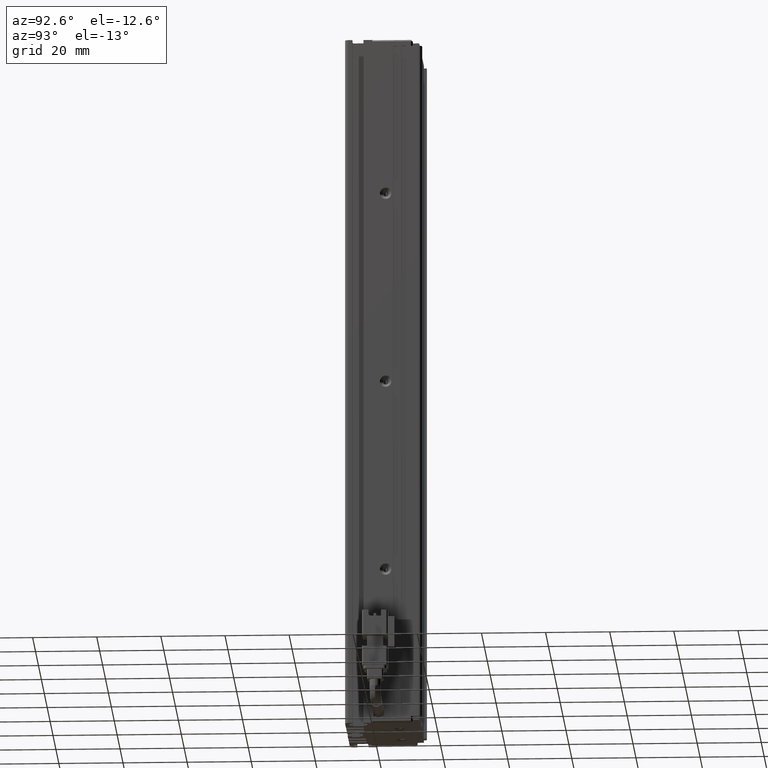
[diagram: clean part render]
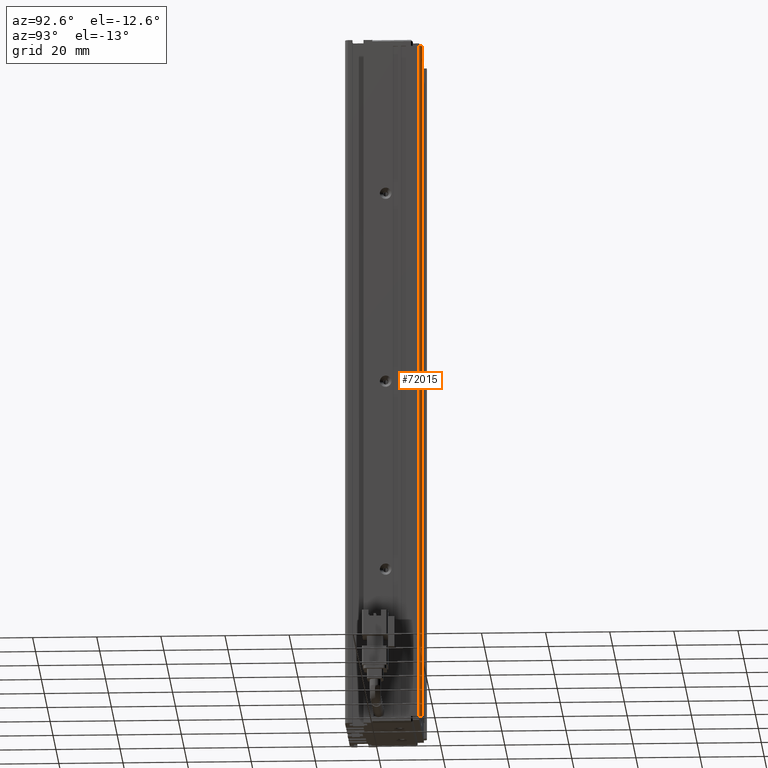
[diagram: same view with one face highlighted and labeled with its STEP entity id]
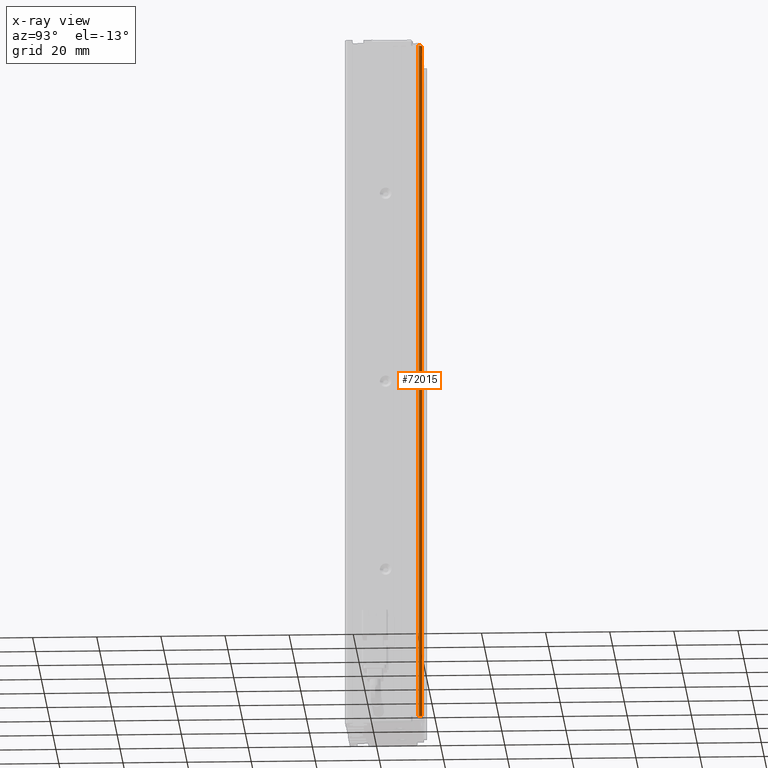
[diagram: x-ray of the same camera — body ghosted, the highlighted face saturated]
A machine part, auxiliary view. The second image highlights one B-rep face of the part: STEP entity #72015.
The next image is the same camera in x-ray: the body ghosted, the highlighted face saturated — about 0% of this face is hidden behind the body in this view.
In plain terms, the highlighted cylindrical surface (edge-blend (fillet) strip) has radius 1 mm, axis along (-0, -0, -1).
Its self-contained STEP definition (entity closure, byte-faithful):
#1342 = CARTESIAN_POINT ( 'NONE',  ( 58.42537974683542500, 33.99073232304837700, -6.000000000000005300 ) ) ;
#4402 = EDGE_CURVE ( 'NONE', #36153, #37281, #14865, .T. ) ;
#5025 = DIRECTION ( 'NONE',  ( -0.0000000000000000000, -0.0000000000000000000, -1.000000000000000000 ) ) ;
#12081 = DIRECTION ( 'NONE',  ( -1.000000000000000000, 0.0000000000000000000, 0.0000000000000000000 ) ) ;
#12445 = ORIENTED_EDGE ( 'NONE', *, *, #4402, .T. ) ;
#14865 = CIRCLE ( 'NONE', #68524, 1.000000000000000900 ) ;
#23373 = CARTESIAN_POINT ( 'NONE',  ( 57.42537974683541800, 34.99073232304837700, -8.000000000000007100 ) ) ;
#23475 = DIRECTION ( 'NONE',  ( -1.000000000000000000, 0.0000000000000000000, 0.0000000000000000000 ) ) ;
#29233 = ORIENTED_EDGE ( 'NONE', *, *, #50644, .T. ) ;
#29571 = VECTOR ( 'NONE', #69471, 1000.000000000000000 ) ;
#30608 = EDGE_CURVE ( 'NONE', #44043, #49705, #50494, .T. ) ;
#36153 = VERTEX_POINT ( 'NONE', #77156 ) ;
#37281 = VERTEX_POINT ( 'NONE', #56423 ) ;
#41112 = EDGE_LOOP ( 'NONE', ( #44529, #12445, #29233, #60810 ) ) ;
#42159 = VECTOR ( 'NONE', #65213, 1000.000000000000000 ) ;
#44043 = VERTEX_POINT ( 'NONE', #23373 ) ;
#44529 = ORIENTED_EDGE ( 'NONE', *, *, #60619, .T. ) ;
#46834 = CYLINDRICAL_SURFACE ( 'NONE', #77249, 1.000000000000000900 ) ;
#47595 = LINE ( 'NONE', #1342, #42159 ) ;
#47626 = CARTESIAN_POINT ( 'NONE',  ( 57.42537974683541800, 33.99073232304837700, -8.000000000000007100 ) ) ;
#49705 = VERTEX_POINT ( 'NONE', #83977 ) ;
#50494 = CIRCLE ( 'NONE', #58263, 1.000000000000000900 ) ;
#50644 = EDGE_CURVE ( 'NONE', #37281, #44043, #84266, .T. ) ;
#54938 = DIRECTION ( 'NONE',  ( -0.0000000000000000000, -0.0000000000000000000, -1.000000000000000000 ) ) ;
#55345 = CARTESIAN_POINT ( 'NONE',  ( 57.42537974683541100, 34.99073232304837700, -6.000000000000005300 ) ) ;
#56423 = CARTESIAN_POINT ( 'NONE',  ( 57.42537974683541800, 34.99073232304837700, -222.0000000000000000 ) ) ;
#58263 = AXIS2_PLACEMENT_3D ( 'NONE', #47626, #54938, #83078 ) ;
#58811 = FACE_OUTER_BOUND ( 'NONE', #41112, .T. ) ;
#60619 = EDGE_CURVE ( 'NONE', #49705, #36153, #47595, .T. ) ;
#60810 = ORIENTED_EDGE ( 'NONE', *, *, #30608, .T. ) ;
#65213 = DIRECTION ( 'NONE',  ( -0.0000000000000000000, -0.0000000000000000000, -1.000000000000000000 ) ) ;
#68524 = AXIS2_PLACEMENT_3D ( 'NONE', #80589, #79679, #23475 ) ;
#69471 = DIRECTION ( 'NONE',  ( 0.0000000000000000000, 0.0000000000000000000, 1.000000000000000000 ) ) ;
#72015 = ADVANCED_FACE ( 'NONE', ( #58811 ), #46834, .T. ) ;
#77156 = CARTESIAN_POINT ( 'NONE',  ( 58.42537974683542500, 33.99073232304837700, -222.0000000000000000 ) ) ;
#77249 = AXIS2_PLACEMENT_3D ( 'NONE', #82717, #5025, #12081 ) ;
#79679 = DIRECTION ( 'NONE',  ( 0.0000000000000000000, 0.0000000000000000000, 1.000000000000000000 ) ) ;
#80589 = CARTESIAN_POINT ( 'NONE',  ( 57.42537974683541800, 33.99073232304837700, -222.0000000000000000 ) ) ;
#82717 = CARTESIAN_POINT ( 'NONE',  ( 57.42537974683541800, 33.99073232304837700, -6.000000000000005300 ) ) ;
#83078 = DIRECTION ( 'NONE',  ( -1.000000000000000000, 0.0000000000000000000, 0.0000000000000000000 ) ) ;
#83977 = CARTESIAN_POINT ( 'NONE',  ( 58.42537974683542500, 33.99073232304837700, -8.000000000000007100 ) ) ;
#84266 = LINE ( 'NONE', #55345, #29571 ) ;